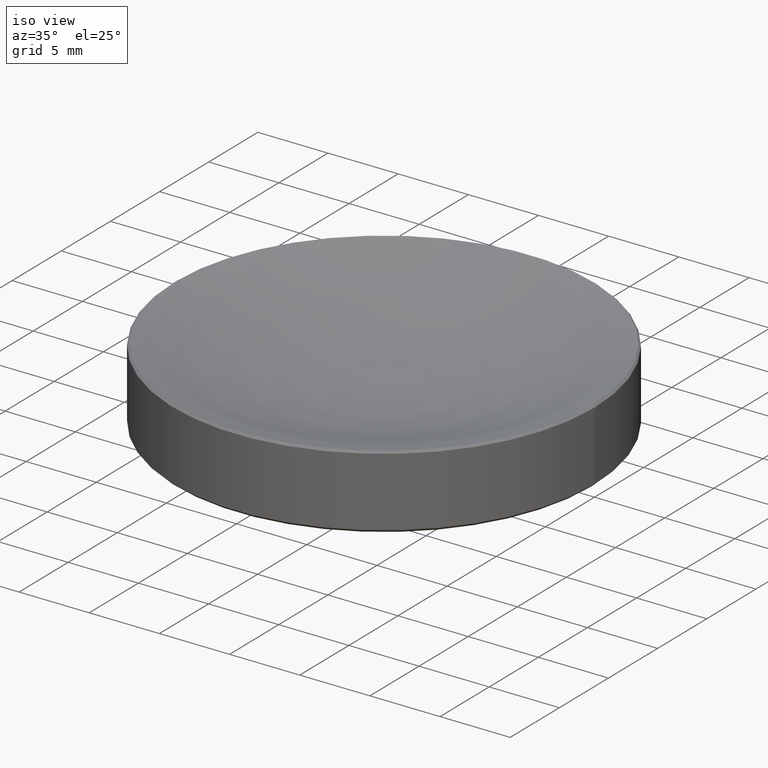
[diagram: clean part render]
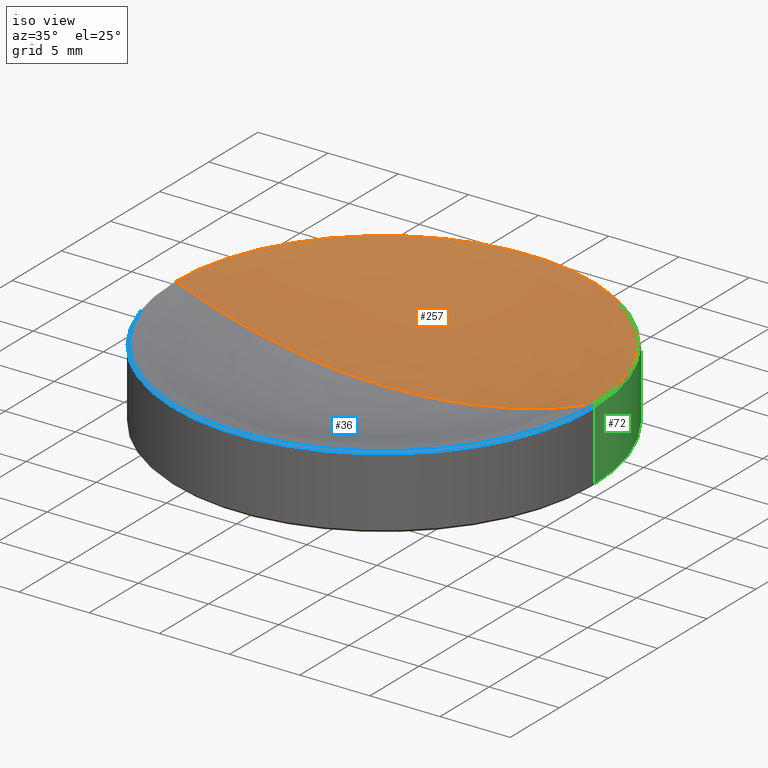
[diagram: same view with three faces highlighted in distinct colors, each labeled with its STEP entity id]
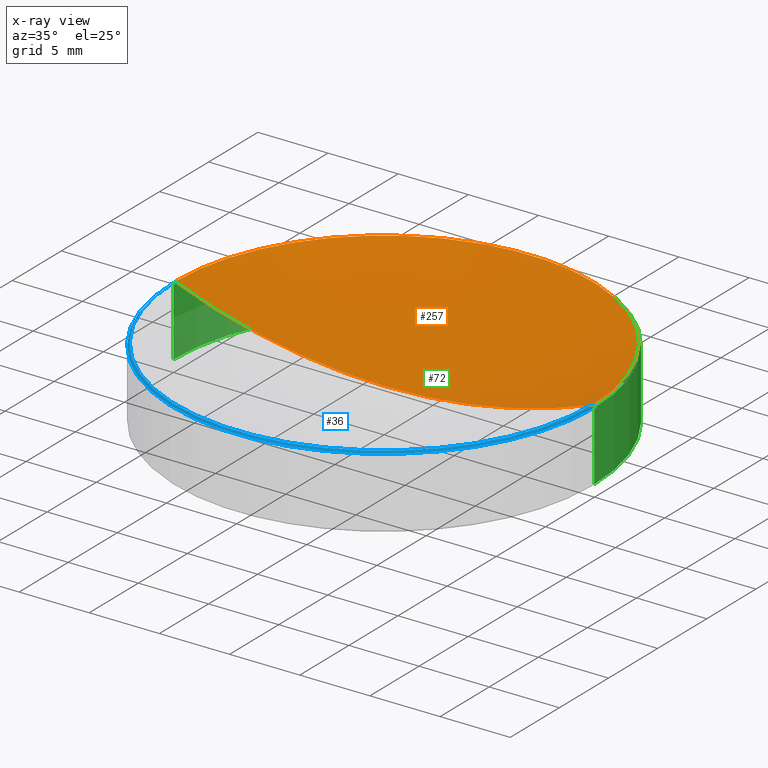
[diagram: x-ray of the same camera — body ghosted, the three highlighted faces saturated]
A machine part, iso view with three faces highlighted in distinct colors.
The next image is the same camera in x-ray (body ghosted, the three faces saturated) — at least one of them is partly hidden behind the body in this view.
Their STEP definitions:

[orange] entity #257 — the highlighted toroidal blend (fillet) surface has major radius 0.0007 mm and minor (blend) radius 41.3 mm.
#10 = CIRCLE ( 'NONE', #167, 41.30000000000000426 ) ;
#14 = DIRECTION ( 'NONE',  ( 1.000000000000000000, 0.000000000000000000, 0.000000000000000000 ) ) ;
#22 = EDGE_CURVE ( 'NONE', #249, #136, #110, .T. ) ;
#23 = ORIENTED_EDGE ( 'NONE', *, *, #62, .T. ) ;
#44 = AXIS2_PLACEMENT_3D ( 'NONE', #182, #266, #102 ) ;
#48 = VERTEX_POINT ( 'NONE', #127 ) ;
#57 = TOROIDAL_SURFACE ( 'NONE', #234, 0.0006800010524327451678, 41.30000000000000426 ) ;
#59 = AXIS2_PLACEMENT_3D ( 'NONE', #210, #190, #189 ) ;
#61 = FACE_OUTER_BOUND ( 'NONE', #63, .T. ) ;
#62 = EDGE_CURVE ( 'NONE', #48, #249, #10, .T. ) ;
#63 = EDGE_LOOP ( 'NONE', ( #229, #23, #66 ) ) ;
#66 = ORIENTED_EDGE ( 'NONE', *, *, #22, .T. ) ;
#78 = DIRECTION ( 'NONE',  ( 0.000000000000000000, 0.000000000000000000, -1.000000000000000000 ) ) ;
#84 = CARTESIAN_POINT ( 'NONE',  ( 14.85587050448259916, 0.000000000000000000, 5.264129495517397395 ) ) ;
#102 = DIRECTION ( 'NONE',  ( -1.000000000000000000, 1.224646799147353207E-16, 0.000000000000000000 ) ) ;
#110 = CIRCLE ( 'NONE', #59, 14.85587050448260094 ) ;
#118 = CARTESIAN_POINT ( 'NONE',  ( -14.85587050448259916, 1.819319426186219465E-15, 5.264129495517397395 ) ) ;
#127 = CARTESIAN_POINT ( 'NONE',  ( 0.000000000000000000, 0.000000000000000000, 2.500000000000000000 ) ) ;
#130 = CIRCLE ( 'NONE', #44, 41.30000000000000426 ) ;
#136 = VERTEX_POINT ( 'NONE', #118 ) ;
#167 = AXIS2_PLACEMENT_3D ( 'NONE', #263, #240, #78 ) ;
#182 = CARTESIAN_POINT ( 'NONE',  ( -0.0006800010524327451678, 8.327611122785927967E-20, 43.79999999440192227 ) ) ;
#189 = DIRECTION ( 'NONE',  ( 1.000000000000000000, 0.000000000000000000, 0.000000000000000000 ) ) ;
#190 = DIRECTION ( 'NONE',  ( -0.000000000000000000, -0.000000000000000000, 1.000000000000000000 ) ) ;
#210 = CARTESIAN_POINT ( 'NONE',  ( 0.000000000000000000, 0.000000000000000000, 5.264129495517397395 ) ) ;
#222 = CARTESIAN_POINT ( 'NONE',  ( 0.000000000000000000, 0.000000000000000000, 43.79999999440192227 ) ) ;
#229 = ORIENTED_EDGE ( 'NONE', *, *, #242, .F. ) ;
#234 = AXIS2_PLACEMENT_3D ( 'NONE', #222, #252, #14 ) ;
#240 = DIRECTION ( 'NONE',  ( 0.000000000000000000, -1.000000000000000000, 0.000000000000000000 ) ) ;
#242 = EDGE_CURVE ( 'NONE', #48, #136, #130, .T. ) ;
#249 = VERTEX_POINT ( 'NONE', #84 ) ;
#252 = DIRECTION ( 'NONE',  ( -0.000000000000000000, -0.000000000000000000, 1.000000000000000000 ) ) ;
#257 = ADVANCED_FACE ( 'NONE', ( #61 ), #57, .F. ) ;
#263 = CARTESIAN_POINT ( 'NONE',  ( 0.0006800010524327451678, 0.000000000000000000, 43.79999999440192227 ) ) ;
#266 = DIRECTION ( 'NONE',  ( 1.224646799147353207E-16, 1.000000000000000000, 0.000000000000000000 ) ) ;

[blue] entity #36 — the highlighted conical surface has half-angle 45 deg.
#13 = DIRECTION ( 'NONE',  ( 0.000000000000000000, 0.000000000000000000, -1.000000000000000000 ) ) ;
#17 = AXIS2_PLACEMENT_3D ( 'NONE', #183, #13, #103 ) ;
#24 = VERTEX_POINT ( 'NONE', #89 ) ;
#25 = AXIS2_PLACEMENT_3D ( 'NONE', #155, #212, #134 ) ;
#36 = ADVANCED_FACE ( 'NONE', ( #173 ), #231, .T. ) ;
#45 = EDGE_LOOP ( 'NONE', ( #232, #230, #152, #153 ) ) ;
#82 = CARTESIAN_POINT ( 'NONE',  ( 0.000000000000000000, 0.000000000000000000, 5.264129495517397395 ) ) ;
#84 = CARTESIAN_POINT ( 'NONE',  ( 14.85587050448259916, 0.000000000000000000, 5.264129495517397395 ) ) ;
#86 = AXIS2_PLACEMENT_3D ( 'NONE', #82, #166, #185 ) ;
#87 = DIRECTION ( 'NONE',  ( -0.7071067811865729968, 0.000000000000000000, -0.7071067811865220376 ) ) ;
#89 = CARTESIAN_POINT ( 'NONE',  ( 15.00000000000000000, 0.000000000000000000, 5.120000000000013429 ) ) ;
#98 = LINE ( 'NONE', #175, #178 ) ;
#103 = DIRECTION ( 'NONE',  ( -1.000000000000000000, 0.000000000000000000, 0.000000000000000000 ) ) ;
#118 = CARTESIAN_POINT ( 'NONE',  ( -14.85587050448259916, 1.819319426186219465E-15, 5.264129495517397395 ) ) ;
#123 = CARTESIAN_POINT ( 'NONE',  ( -14.85587050448260449, 0.000000000000000000, 5.264129495517397395 ) ) ;
#125 = VECTOR ( 'NONE', #87, 1000.000000000000000 ) ;
#128 = EDGE_CURVE ( 'NONE', #249, #24, #98, .T. ) ;
#134 = DIRECTION ( 'NONE',  ( -1.000000000000000000, 0.000000000000000000, 0.000000000000000000 ) ) ;
#136 = VERTEX_POINT ( 'NONE', #118 ) ;
#146 = CIRCLE ( 'NONE', #17, 15.00000000000000000 ) ;
#152 = ORIENTED_EDGE ( 'NONE', *, *, #201, .T. ) ;
#153 = ORIENTED_EDGE ( 'NONE', *, *, #215, .F. ) ;
#155 = CARTESIAN_POINT ( 'NONE',  ( 0.000000000000000000, 0.000000000000000000, 5.264129495517397395 ) ) ;
#166 = DIRECTION ( 'NONE',  ( -0.000000000000000000, -0.000000000000000000, 1.000000000000000000 ) ) ;
#168 = VERTEX_POINT ( 'NONE', #206 ) ;
#173 = FACE_OUTER_BOUND ( 'NONE', #45, .T. ) ;
#175 = CARTESIAN_POINT ( 'NONE',  ( 14.85587050448260449, 1.819319426186219859E-15, 5.264129495517397395 ) ) ;
#178 = VECTOR ( 'NONE', #260, 1000.000000000000000 ) ;
#183 = CARTESIAN_POINT ( 'NONE',  ( 0.000000000000000000, 0.000000000000000000, 5.120000000000013429 ) ) ;
#185 = DIRECTION ( 'NONE',  ( 1.000000000000000000, 0.000000000000000000, 0.000000000000000000 ) ) ;
#199 = CIRCLE ( 'NONE', #86, 14.85587050448260094 ) ;
#201 = EDGE_CURVE ( 'NONE', #136, #168, #251, .T. ) ;
#206 = CARTESIAN_POINT ( 'NONE',  ( -15.00000000000000000, 1.836970198721029589E-15, 5.120000000000013429 ) ) ;
#212 = DIRECTION ( 'NONE',  ( 0.000000000000000000, 0.000000000000000000, -1.000000000000000000 ) ) ;
#215 = EDGE_CURVE ( 'NONE', #24, #168, #146, .T. ) ;
#230 = ORIENTED_EDGE ( 'NONE', *, *, #250, .F. ) ;
#231 = CONICAL_SURFACE ( 'NONE', #25, 14.85587050448260449, 0.7853981633974843612 ) ;
#232 = ORIENTED_EDGE ( 'NONE', *, *, #128, .F. ) ;
#249 = VERTEX_POINT ( 'NONE', #84 ) ;
#250 = EDGE_CURVE ( 'NONE', #136, #249, #199, .T. ) ;
#251 = LINE ( 'NONE', #123, #125 ) ;
#260 = DIRECTION ( 'NONE',  ( 0.7071067811865729968, 8.659560562355244705E-17, -0.7071067811865220376 ) ) ;

[green] entity #72 — the highlighted cylindrical surface (partial cylindrical patch) has radius 15 mm, axis along (-0, -0, 1).
#6 = DIRECTION ( 'NONE',  ( -0.000000000000000000, -0.000000000000000000, 1.000000000000000000 ) ) ;
#8 = CARTESIAN_POINT ( 'NONE',  ( 15.00000000000000000, 0.000000000000000000, 2.500000000000000000 ) ) ;
#18 = CIRCLE ( 'NONE', #126, 15.00000000000000000 ) ;
#24 = VERTEX_POINT ( 'NONE', #89 ) ;
#30 = VERTEX_POINT ( 'NONE', #92 ) ;
#35 = CARTESIAN_POINT ( 'NONE',  ( -15.00000000000000000, 1.836970198721029589E-15, 2.500000000000000000 ) ) ;
#47 = AXIS2_PLACEMENT_3D ( 'NONE', #220, #179, #121 ) ;
#55 = EDGE_CURVE ( 'NONE', #168, #24, #133, .T. ) ;
#58 = LINE ( 'NONE', #35, #202 ) ;
#65 = ORIENTED_EDGE ( 'NONE', *, *, #55, .T. ) ;
#67 = EDGE_CURVE ( 'NONE', #191, #24, #221, .T. ) ;
#72 = ADVANCED_FACE ( 'NONE', ( #239 ), #181, .T. ) ;
#74 = DIRECTION ( 'NONE',  ( -0.000000000000000000, -0.000000000000000000, 1.000000000000000000 ) ) ;
#80 = DIRECTION ( 'NONE',  ( 1.000000000000000000, 0.000000000000000000, 0.000000000000000000 ) ) ;
#83 = EDGE_CURVE ( 'NONE', #30, #168, #58, .T. ) ;
#89 = CARTESIAN_POINT ( 'NONE',  ( 15.00000000000000000, 0.000000000000000000, 5.120000000000013429 ) ) ;
#92 = CARTESIAN_POINT ( 'NONE',  ( -15.00000000000000000, 1.836970198721029589E-15, 0.2000000000000048683 ) ) ;
#108 = EDGE_CURVE ( 'NONE', #191, #30, #18, .T. ) ;
#113 = EDGE_LOOP ( 'NONE', ( #227, #208, #65, #258 ) ) ;
#119 = CARTESIAN_POINT ( 'NONE',  ( 0.000000000000000000, 0.000000000000000000, 2.500000000000000000 ) ) ;
#120 = CARTESIAN_POINT ( 'NONE',  ( 0.000000000000000000, 0.000000000000000000, 0.2000000000000048683 ) ) ;
#121 = DIRECTION ( 'NONE',  ( -1.000000000000000000, 0.000000000000000000, 0.000000000000000000 ) ) ;
#126 = AXIS2_PLACEMENT_3D ( 'NONE', #120, #218, #217 ) ;
#133 = CIRCLE ( 'NONE', #47, 15.00000000000000000 ) ;
#164 = CARTESIAN_POINT ( 'NONE',  ( 15.00000000000000000, 0.000000000000000000, 0.2000000000000048683 ) ) ;
#168 = VERTEX_POINT ( 'NONE', #206 ) ;
#171 = VECTOR ( 'NONE', #245, 1000.000000000000000 ) ;
#179 = DIRECTION ( 'NONE',  ( 0.000000000000000000, 0.000000000000000000, -1.000000000000000000 ) ) ;
#181 = CYLINDRICAL_SURFACE ( 'NONE', #241, 15.00000000000000000 ) ;
#191 = VERTEX_POINT ( 'NONE', #164 ) ;
#202 = VECTOR ( 'NONE', #74, 1000.000000000000000 ) ;
#206 = CARTESIAN_POINT ( 'NONE',  ( -15.00000000000000000, 1.836970198721029589E-15, 5.120000000000013429 ) ) ;
#208 = ORIENTED_EDGE ( 'NONE', *, *, #83, .T. ) ;
#217 = DIRECTION ( 'NONE',  ( 1.000000000000000000, 0.000000000000000000, 0.000000000000000000 ) ) ;
#218 = DIRECTION ( 'NONE',  ( -0.000000000000000000, -0.000000000000000000, 1.000000000000000000 ) ) ;
#220 = CARTESIAN_POINT ( 'NONE',  ( 0.000000000000000000, 0.000000000000000000, 5.120000000000013429 ) ) ;
#221 = LINE ( 'NONE', #8, #171 ) ;
#227 = ORIENTED_EDGE ( 'NONE', *, *, #108, .T. ) ;
#239 = FACE_OUTER_BOUND ( 'NONE', #113, .T. ) ;
#241 = AXIS2_PLACEMENT_3D ( 'NONE', #119, #6, #80 ) ;
#245 = DIRECTION ( 'NONE',  ( -0.000000000000000000, -0.000000000000000000, 1.000000000000000000 ) ) ;
#258 = ORIENTED_EDGE ( 'NONE', *, *, #67, .F. ) ;